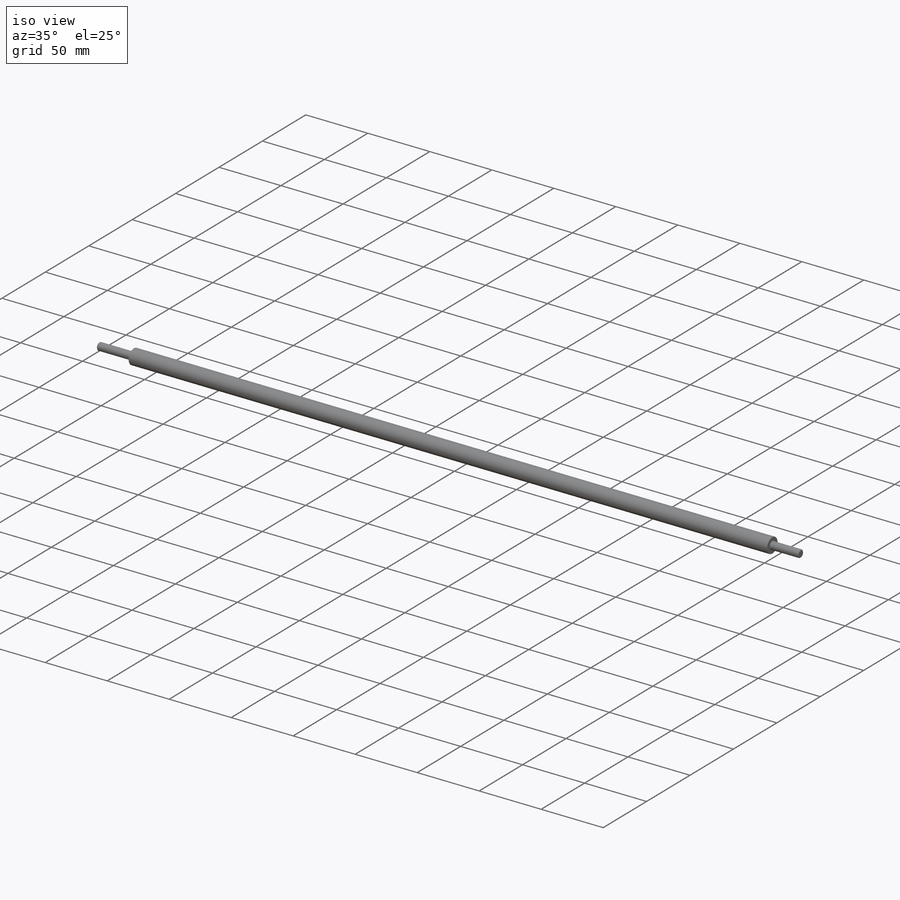
[diagram: iso view]
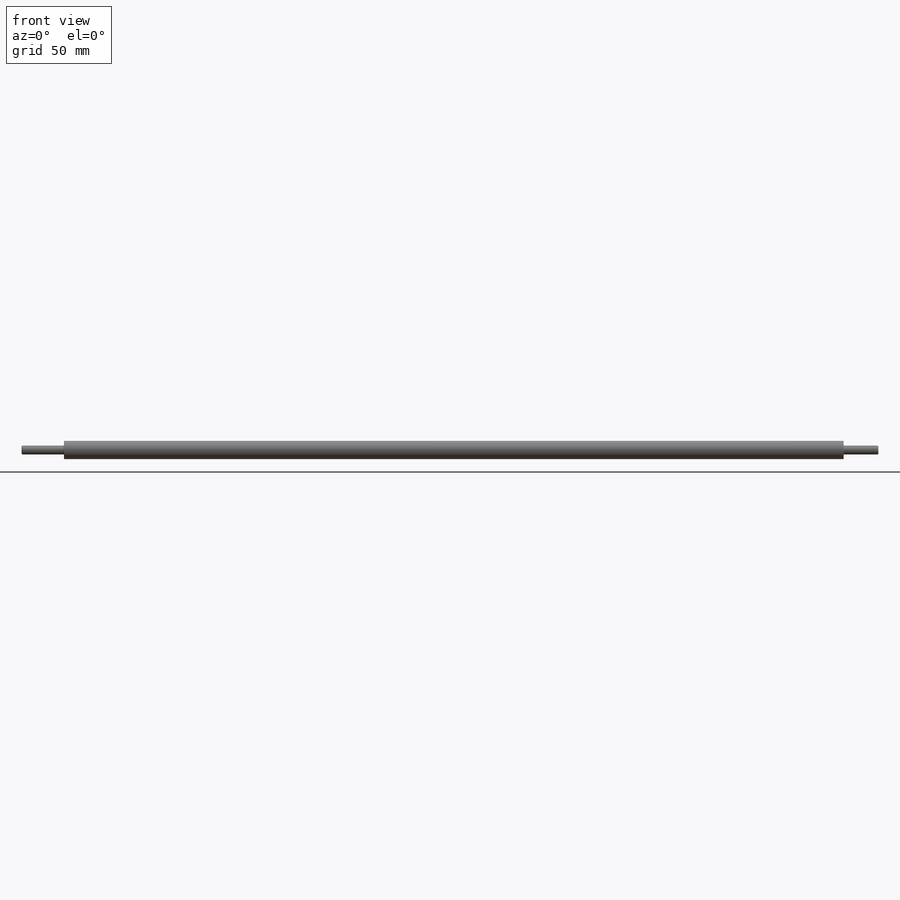
[diagram: front view]
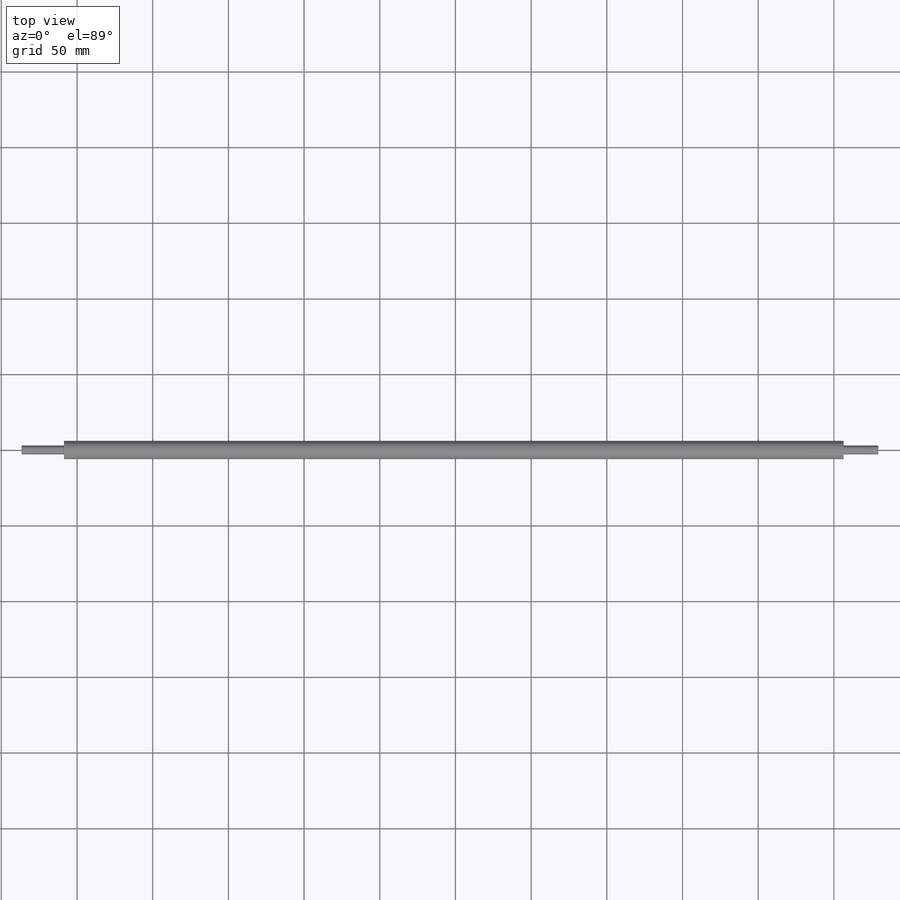
[diagram: top view]
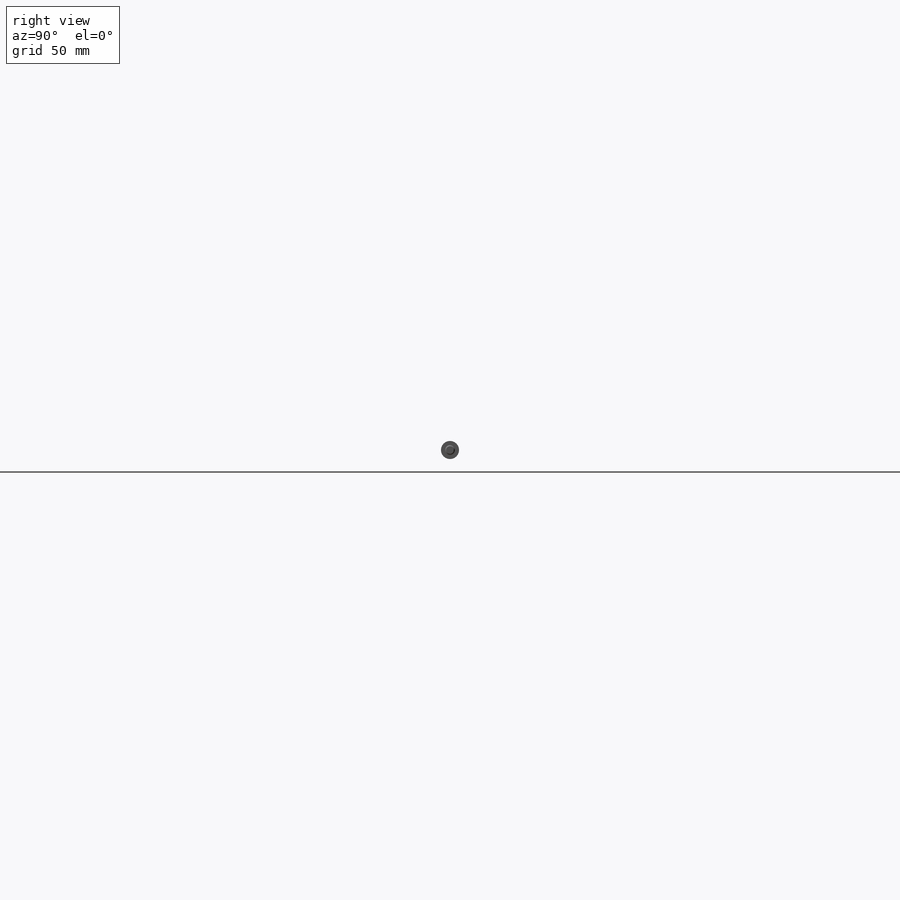
[diagram: right view]
SOLIDWORKS PART (.sldprt)
format: sldprt  version: not decoded by parser v0  size: 235,008 bytes
history: native  units: mm
features: thread x2, material x1, sketch x1, revolve x1, chamfer x1, fillet x1 (+11 scaffold rows collapsed)
feature tree (18):
  scaffold x11  (default folders/planes/origin — collapsed)
  material  "Plain Carbon Steel"
  sketch  "Sketch1"  dims[c1.D1=12.0mm c1.D2=6.0mm c1.D3=6.0mm c1.D4=1.0mm c1.D5=515.0mm c1.D6=23.0mm c2.D4=1.5mm c2.D7=28.0mm c2.D8=5.0mm c2.D9=17.0mm c2.D10=566.0mm]
  revolve  "Revolve1"  [1 undecoded]
  thread  "Cosmetic Thread1"  Diameter=10mm  [1 undecoded]
  thread  "Cosmetic Thread2"  Diameter=15mm  [1 undecoded]
  chamfer  "Chamfer1"  Distance=0.5mm Angle=45deg
  fillet  "Fillet1"  Radius=0.3mm
decode coverage: 5 of 6 modeling features carry decoded parameters
note: 3 parameter values undecoded
note: suppression state not decoded; provenance and decode notes live in map.json
